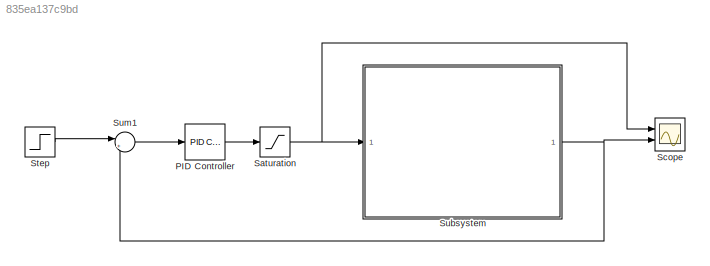
MODEL slx_835ea137c9bd
KIND model
CONFIG AbsTol = auto
CONFIG EnableMultiTasking = off
CONFIG FixedStep = auto
CONFIG MaxStep = auto
CONFIG MinStep = auto
CONFIG RelTol = 1e-3
CONFIG SampleTimeConstraint = Unconstrained
CONFIG SolverName = VariableStepAuto
CONFIG StartTime = 0.0
CONFIG StopTime = 20000
BLOCK [Reference] PID Controller  REF=slpidlib/PID Controller
  Ports = [1, 1]
  SourceBlock = slpidlib/PID Controller
  SourceProductBaseCode = SL
  SourceType = PID 1dof
BLOCK [Saturate] Saturation
  LowerLimit = -1
  UpperLimit = 5
BLOCK [Scope] Scope
  Floating = off
  NumInputPorts = 2
  Ports = [2]
  ScopeSpecificationString = Simulink.scopes.TimeScopeBlockCfg('CurrentConfiguration', extmgr.ConfigurationSet(extmgr.Configuration('Core','General UI',true),extmgr.Configuration('Core','Source UI',true),extmgr.Configuration('Sources','WiredSimulink',true),extmgr.Configuration('Visuals','Time Domain',true,'SerializedDisplays',{struct('MinYLimReal','0.02572','MaxYLimReal','5.5527','YLabelReal','','MinYLimMag','0.02572','MaxYLi...<+2053ch>
BLOCK [Step] Step
  After = 45
  SampleTime = 0
  Time = 0
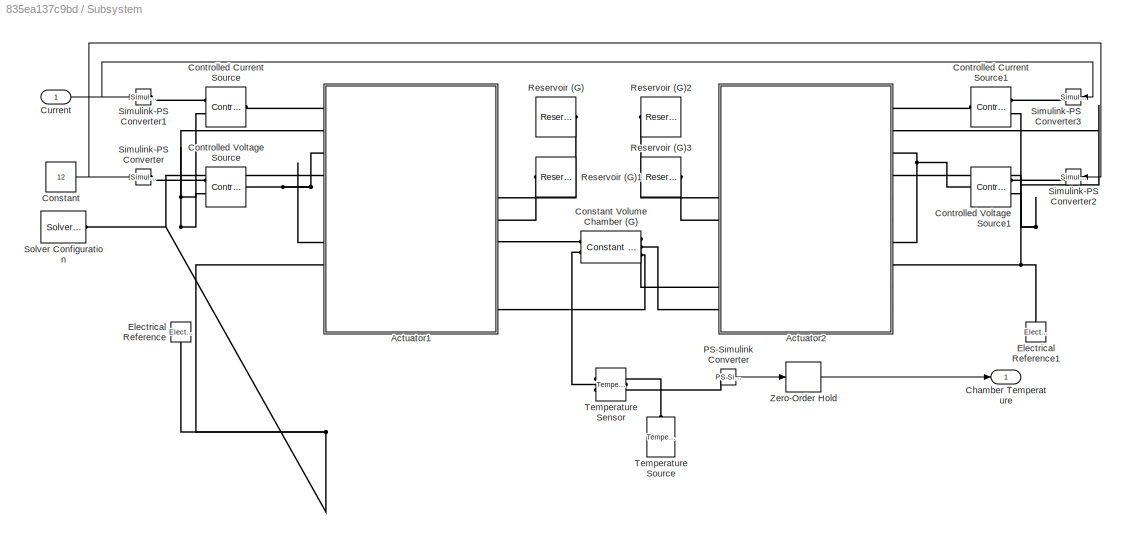
BLOCK [SubSystem] Subsystem
  Ports = [1, 1]
  RequestExecContextInheritance = off
BLOCK [SubSystem] Subsystem/Actuator1
  PortSchema = {"entries":[{"content":{"sides":[{"content":{"connectorIds":["LConn1","LConn2","LConn3","LConn4","LConn7","LConn8"]},"type":"ConnectorPlacement.EquallySpacedRectSide","uuid":"d457bfca-5b88-4301-b763-1a1ef357e8f7"},{"content":{"connectorIds":["LConn5","LConn6","LConn9","LConn10"],"side":"RIGHT"},"type":"ConnectorPlacement.EquallySpacedRectSide","uuid":"6d21a9da-5af6-404c-9aaa-5fa645f96412"},{"conte...<+462ch>
  Ports = [0, 0, 0, 0, 0, 10]
  ReferencedSubsystem = Actuator1
  RequestExecContextInheritance = off
BLOCK [SubSystem] Subsystem/Actuator2
  PortSchema = {"entries":[{"content":{"sides":[{"content":{"connectorIds":["LConn1","LConn2","LConn3","LConn4","LConn7","LConn8"]},"type":"ConnectorPlacement.EquallySpacedRectSide","uuid":"d457bfca-5b88-4301-b763-1a1ef357e8f7"},{"content":{"connectorIds":["LConn5","LConn6","LConn9","LConn10"],"side":"RIGHT"},"type":"ConnectorPlacement.EquallySpacedRectSide","uuid":"6d21a9da-5af6-404c-9aaa-5fa645f96412"},{"conte...<+462ch>
  Ports = [0, 0, 0, 0, 0, 10]
  ReferencedSubsystem = Actuator1
  RequestExecContextInheritance = off
BLOCK [Outport] Subsystem/Chamber Temperature
BLOCK [Constant] Subsystem/Constant
  Value = 12
BLOCK [Reference] Subsystem/Constant Volume Chamber (G)  REF=fl_lib/Gas/Elements/Constant Volume
Chamber (G)
  Ports = [0, 0, 0, 0, 0, 2, 3]
  SourceBlock = fl_lib/Gas/Elements/Constant Volume\nChamber (G)
  SourceProductBaseCode = PW,SS,VE
  SourceType = Constant Volume\nChamber (G)
BLOCK [Reference] Subsystem/Controlled Current Source  REF=fl_lib/Electrical/Electrical Sources/Controlled Current
Source
  Ports = [0, 0, 0, 0, 0, 1, 2]
  SourceBlock = fl_lib/Electrical/Electrical Sources/Controlled Current\nSource
  SourceProductBaseCode = PW,SS,VE
  SourceType = Controlled Current\nSource
BLOCK [Reference] Subsystem/Controlled Current Source1  REF=fl_lib/Electrical/Electrical Sources/Controlled Current
Source
  Ports = [0, 0, 0, 0, 0, 1, 2]
  SourceBlock = fl_lib/Electrical/Electrical Sources/Controlled Current\nSource
  SourceProductBaseCode = PW,SS,VE
  SourceType = Controlled Current\nSource
BLOCK [Reference] Subsystem/Controlled Voltage Source  REF=fl_lib/Electrical/Electrical Sources/Controlled Voltage
Source
  Ports = [0, 0, 0, 0, 0, 1, 2]
  SourceBlock = fl_lib/Electrical/Electrical Sources/Controlled Voltage\nSource
  SourceProductBaseCode = PW,SS,VE
  SourceType = Controlled Voltage\nSource
BLOCK [Reference] Subsystem/Controlled Voltage Source1  REF=fl_lib/Electrical/Electrical Sources/Controlled Voltage
Source
  Ports = [0, 0, 0, 0, 0, 1, 2]
  SourceBlock = fl_lib/Electrical/Electrical Sources/Controlled Voltage\nSource
  SourceProductBaseCode = PW,SS,VE
  SourceType = Controlled Voltage\nSource
BLOCK [Inport] Subsystem/Current
BLOCK [Reference] Subsystem/Electrical Reference  REF=fl_lib/Electrical/Electrical Elements/Electrical Reference
  NameLocation = right
  Ports = [0, 0, 0, 0, 0, 1]
  SourceBlock = fl_lib/Electrical/Electrical Elements/Electrical Reference
  SourceProductBaseCode = PW,SS,VE
  SourceType = Electrical Reference
BLOCK [Reference] Subsystem/Electrical Reference1  REF=fl_lib/Electrical/Electrical Elements/Electrical Reference
  NameLocation = right
  Ports = [0, 0, 0, 0, 0, 1]
  SourceBlock = fl_lib/Electrical/Electrical Elements/Electrical Reference
  SourceProductBaseCode = PW,SS,VE
  SourceType = Electrical Reference
BLOCK [Reference] Subsystem/PS-Simulink Converter  REF=nesl_utility/PS-Simulink
Converter
  Ports = [0, 1, 0, 0, 0, 1]
  SourceBlock = nesl_utility/PS-Simulink\nConverter
  SourceProductBaseCode = SS,PW,VE
  SourceType = PS-Simulink\nConverter
BLOCK [Reference] Subsystem/Reservoir (G)  REF=fl_lib/Gas/Elements/Reservoir (G)
  NameLocation = top
  Ports = [0, 0, 0, 0, 0, 1]
  SourceBlock = fl_lib/Gas/Elements/Reservoir (G)
  SourceProductBaseCode = PW,SS,VE
  SourceType = Reservoir (G)
BLOCK [Reference] Subsystem/Reservoir (G)1  REF=fl_lib/Gas/Elements/Reservoir (G)
  Ports = [0, 0, 0, 0, 0, 1]
  SourceBlock = fl_lib/Gas/Elements/Reservoir (G)
  SourceProductBaseCode = PW,SS,VE
  SourceType = Reservoir (G)
BLOCK [Reference] Subsystem/Reservoir (G)2  REF=fl_lib/Gas/Elements/Reservoir (G)
  NameLocation = top
  Ports = [0, 0, 0, 0, 0, 1]
  SourceBlock = fl_lib/Gas/Elements/Reservoir (G)
  SourceProductBaseCode = PW,SS,VE
  SourceType = Reservoir (G)
BLOCK [Reference] Subsystem/Reservoir (G)3  REF=fl_lib/Gas/Elements/Reservoir (G)
  Ports = [0, 0, 0, 0, 0, 1]
  SourceBlock = fl_lib/Gas/Elements/Reservoir (G)
  SourceProductBaseCode = PW,SS,VE
  SourceType = Reservoir (G)
BLOCK [Reference] Subsystem/Simulink-PS Converter  REF=nesl_utility/Simulink-PS
Converter
  Ports = [1, 0, 0, 0, 0, 0, 1]
  SourceBlock = nesl_utility/Simulink-PS\nConverter
  SourceProductBaseCode = SS,PW,VE
  SourceType = Simulink-PS\nConverter
BLOCK [Reference] Subsystem/Simulink-PS Converter1  REF=nesl_utility/Simulink-PS
Converter
  Ports = [1, 0, 0, 0, 0, 0, 1]
  SourceBlock = nesl_utility/Simulink-PS\nConverter
  SourceProductBaseCode = SS,PW,VE
  SourceType = Simulink-PS\nConverter
BLOCK [Reference] Subsystem/Simulink-PS Converter2  REF=nesl_utility/Simulink-PS
Converter
  Ports = [1, 0, 0, 0, 0, 0, 1]
  SourceBlock = nesl_utility/Simulink-PS\nConverter
  SourceProductBaseCode = SS,PW,VE
  SourceType = Simulink-PS\nConverter
BLOCK [Reference] Subsystem/Simulink-PS Converter3  REF=nesl_utility/Simulink-PS
Converter
  Ports = [1, 0, 0, 0, 0, 0, 1]
  SourceBlock = nesl_utility/Simulink-PS\nConverter
  SourceProductBaseCode = SS,PW,VE
  SourceType = Simulink-PS\nConverter
BLOCK [Reference] Subsystem/Solver Configuration  REF=nesl_utility/Solver
Configuration
  Ports = [0, 0, 0, 0, 0, 0, 1]
  SourceBlock = nesl_utility/Solver\nConfiguration
  SourceProductBaseCode = SS,PW,VE
  SourceType = Solver\nConfiguration
BLOCK [Reference] Subsystem/Temperature Sensor  REF=fl_lib/Thermal/Thermal Sensors/Temperature Sensor
  Ports = [0, 0, 0, 0, 0, 1, 2]
  SourceBlock = fl_lib/Thermal/Thermal Sensors/Temperature Sensor
  SourceProductBaseCode = PW,SS,VE
  SourceType = Temperature Sensor
BLOCK [Reference] Subsystem/Temperature Source  REF=fl_lib/Thermal/Thermal Sources/Temperature Source
  NameLocation = right
  Ports = [0, 0, 0, 0, 0, 1]
  SourceBlock = fl_lib/Thermal/Thermal Sources/Temperature Source
  SourceProductBaseCode = PW,SS,VE
  SourceType = Temperature Source
BLOCK [ZeroOrderHold] Subsystem/Zero-Order Hold
  SampleTime = Ts
BLOCK [Sum] Sum1
  Inputs = |+-
  Ports = [2, 1]
LINE PID Controller:1 -> Saturation:1
NET Saturation:1 -> Scope:1, Subsystem:1
LINE Step:1 -> Sum1:1
NET Subsystem/Constant:1 -> Subsystem/Simulink-PS Converter2:1, Subsystem/Simulink-PS Converter:1
NET Subsystem/Current:1 -> Subsystem/Simulink-PS Converter1:1, Subsystem/Simulink-PS Converter3:1
LINE Subsystem/PS-Simulink Converter:1 -> Subsystem/Zero-Order Hold:1
LINE Subsystem/Zero-Order Hold:1 -> Subsystem/Chamber Temperature:1
NET Subsystem:1 -> Scope:2, Sum1:2
LINE Sum1:1 -> PID Controller:1
PLINE Subsystem/Actuator1:LConn1 -- Subsystem/Controlled Current Source:LConn1
PLINE Subsystem/Actuator1:LConn10 -- Subsystem/Constant Volume Chamber (G):RConn3
PNET net1: Subsystem/Actuator1:LConn2 -- Subsystem/Actuator1:LConn4 -- Subsystem/Actuator1:LConn8 -- Subsystem/Controlled Current Source:RConn2 -- Subsystem/Controlled Voltage Source:RConn2 -- Subsystem/Electrical Reference:LConn1 -- Subsystem/Solver Configuration:RConn1
PNET net2: Subsystem/Actuator1:LConn3 -- Subsystem/Actuator1:LConn7 -- Subsystem/Controlled Voltage Source:LConn1
PLINE Subsystem/Actuator1:LConn5 -- Subsystem/Reservoir (G):LConn1
PLINE Subsystem/Actuator1:LConn6 -- Subsystem/Reservoir (G)1:LConn1
PLINE Subsystem/Actuator1:LConn9 -- Subsystem/Constant Volume Chamber (G):LConn1
PLINE Subsystem/Actuator2:LConn1 -- Subsystem/Controlled Current Source1:LConn1
PLINE Subsystem/Actuator2:LConn10 -- Subsystem/Constant Volume Chamber (G):RConn2
PNET net3: Subsystem/Actuator2:LConn2 -- Subsystem/Actuator2:LConn4 -- Subsystem/Actuator2:LConn8 -- Subsystem/Controlled Current Source1:RConn2 -- Subsystem/Controlled Voltage Source1:RConn2 -- Subsystem/Electrical Reference1:LConn1
PNET net4: Subsystem/Actuator2:LConn3 -- Subsystem/Actuator2:LConn7 -- Subsystem/Controlled Voltage Source1:LConn1
PLINE Subsystem/Actuator2:LConn5 -- Subsystem/Reservoir (G)2:LConn1
PLINE Subsystem/Actuator2:LConn6 -- Subsystem/Reservoir (G)3:LConn1
PLINE Subsystem/Actuator2:LConn9 -- Subsystem/Constant Volume Chamber (G):RConn1
PLINE Subsystem/Constant Volume Chamber (G):LConn2 -- Subsystem/Temperature Sensor:LConn1
PLINE Subsystem/Controlled Current Source1:RConn1 -- Subsystem/Simulink-PS Converter3:RConn1
PLINE Subsystem/Controlled Current Source:RConn1 -- Subsystem/Simulink-PS Converter1:RConn1
PLINE Subsystem/Controlled Voltage Source1:RConn1 -- Subsystem/Simulink-PS Converter2:RConn1
PLINE Subsystem/Controlled Voltage Source:RConn1 -- Subsystem/Simulink-PS Converter:RConn1
PLINE Subsystem/PS-Simulink Converter:LConn1 -- Subsystem/Temperature Sensor:RConn2
PLINE Subsystem/Temperature Sensor:RConn1 -- Subsystem/Temperature Source:LConn1
note: NET lines group one-source signal fan-out (src -> all destinations, sorted); 1:1 wires keep LINE; PNET lines group multi-terminal physical nets as a canonical sorted terminal list (undirected conserving connections); 2-terminal nets keep the pairwise PLINE form
